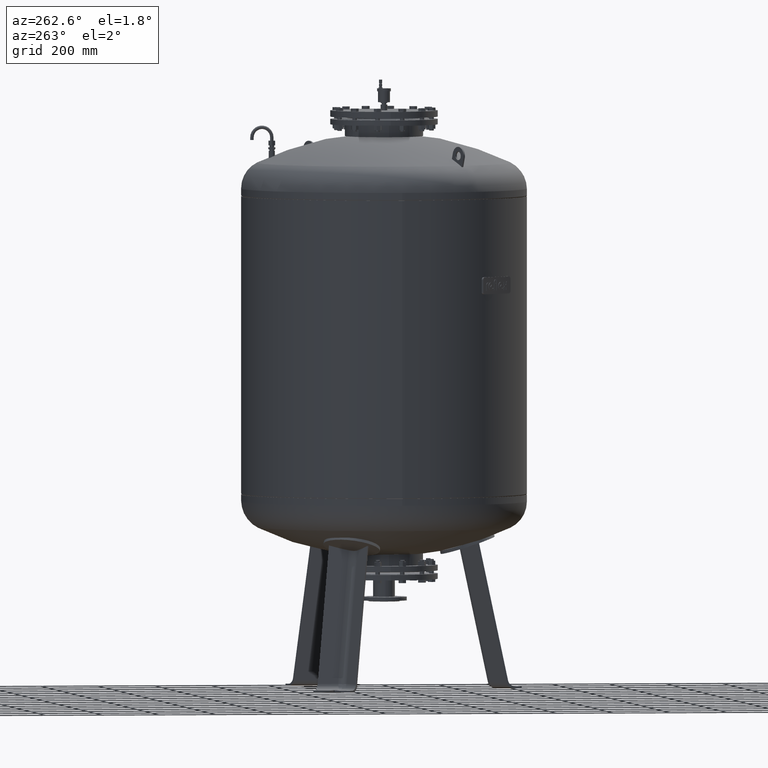
[diagram: clean part render]
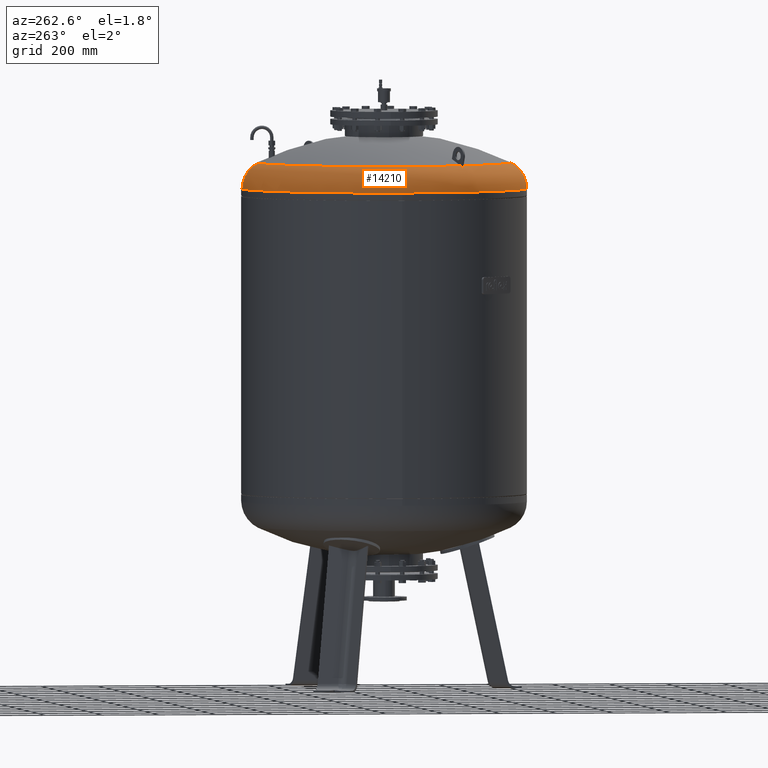
[diagram: same view with one face highlighted and labeled with its STEP entity id]
A machine part, auxiliary view. The second image highlights one B-rep face of the part: STEP entity #14210.
In plain terms, the highlighted toroidal blend (fillet) surface has major radius 399.4 mm and minor (blend) radius 100.6 mm.
Its self-contained STEP definition (entity closure, byte-faithful):
#13615=CARTESIAN_POINT('',(-500.0,2.569315E-014,1746.544644927280400));
#13616=VERTEX_POINT('',#13615);
#13623=CARTESIAN_POINT('',(3.753887E-014,499.999999999999940,1746.544644927280400));
#13624=VERTEX_POINT('',#13623);
#13625=CARTESIAN_POINT('',(2.260647E-015,-3.553717E-014,1746.544644927280400));
#13626=DIRECTION('',(0.0,0.0,-1.0));
#13627=DIRECTION('',(1.0,0.0,0.0));
#13628=AXIS2_PLACEMENT_3D('',#13625,#13626,#13627);
#13629=CIRCLE('',#13628,500.0);
#13630=EDGE_CURVE('',#13616,#13624,#13629,.T.);
#13710=CARTESIAN_POINT('',(-2.369145E-014,-500.000000000000060,1746.544644927280400));
#13711=VERTEX_POINT('',#13710);
#13712=CARTESIAN_POINT('',(-2.474646E-014,-443.777777777777600,1836.827383252533800));
#13713=VERTEX_POINT('',#13712);
#13714=CARTESIAN_POINT('',(-2.369145E-014,-399.399999999999980,1746.544644927280400));
#13715=DIRECTION('',(-1.0,0.0,0.0));
#13716=DIRECTION('',(0.0,-1.0,0.0));
#13717=AXIS2_PLACEMENT_3D('',#13714,#13715,#13716);
#13718=CIRCLE('',#13717,100.600000000000010);
#13719=EDGE_CURVE('',#13711,#13713,#13718,.T.);
#13729=CARTESIAN_POINT('',(2.959885E-014,443.777777777777600,1836.827383252533800));
#13730=VERTEX_POINT('',#13729);
#13731=CARTESIAN_POINT('',(2.521933E-014,399.399999999999860,1746.544644927280400));
#13732=DIRECTION('',(1.0,0.0,0.0));
#13733=DIRECTION('',(0.0,1.0,0.0));
#13734=AXIS2_PLACEMENT_3D('',#13731,#13732,#13733);
#13735=CIRCLE('',#13734,100.600000000000010);
#13736=EDGE_CURVE('',#13624,#13730,#13735,.T.);
#13978=CARTESIAN_POINT('',(-382.814047410493060,-224.481894937162560,1836.827383252533800));
#13979=VERTEX_POINT('',#13978);
#13980=CARTESIAN_POINT('',(-389.830975236114630,-228.533120106169180,1832.371241859355700));
#13981=VERTEX_POINT('',#13980);
#13982=CARTESIAN_POINT('',(-382.814047410493060,-224.481894937162560,1836.827383252533800));
#13983=CARTESIAN_POINT('',(-383.639352309694170,-224.958384942879830,1836.358964044102800));
#13984=CARTESIAN_POINT('',(-384.465875380145410,-225.435578260096290,1835.871089830497800));
#13985=CARTESIAN_POINT('',(-386.558700313612230,-226.643871298800120,1834.585884909508400));
#13986=CARTESIAN_POINT('',(-387.823023543382530,-227.373828655850640,1833.762865036489300));
#13987=CARTESIAN_POINT('',(-389.327412684914410,-228.242388131680000,1832.724754307438600));
#13988=CARTESIAN_POINT('',(-389.579482540164630,-228.387920730463240,1832.548806910300500));
#13989=CARTESIAN_POINT('',(-389.830975236114630,-228.533120106169180,1832.371241859355700));
#13990=B_SPLINE_CURVE_WITH_KNOTS('',3,(#13982,#13983,#13984,#13985,#13986,#13987,#13988,#13989),.UNSPECIFIED.,.F.,.U.,(4,2,2,4),(490.490460209288130,493.520523970825020,498.176350640228350,499.115750118992540),.UNSPECIFIED.);
#13991=EDGE_CURVE('',#13979,#13981,#13990,.T.);
#14093=CARTESIAN_POINT('',(-392.830975236114630,-223.336967683462570,1832.371241859355700));
#14094=VERTEX_POINT('',#14093);
#14095=CARTESIAN_POINT('',(-389.830975236114630,-228.533120106169180,1832.371241859355700));
#14096=CARTESIAN_POINT('',(-390.333307968772260,-227.664983484217170,1832.374723691362500));
#14097=CARTESIAN_POINT('',(-390.833741791658670,-226.799162381117950,1832.376448557724200));
#14098=CARTESIAN_POINT('',(-391.332224433285660,-225.935765119128830,1832.376448557724200));
#14099=CARTESIAN_POINT('',(-391.830707074909750,-225.072367857144680,1832.376448557724200));
#14100=CARTESIAN_POINT('',(-392.330313233880300,-224.206068902067500,1832.374723691362300));
#14101=CARTESIAN_POINT('',(-392.830975236114630,-223.336967683462570,1832.371241859355700));
#14102=B_SPLINE_CURVE_WITH_KNOTS('',3,(#14095,#14096,#14097,#14098,#14099,#14100,#14101),.UNSPECIFIED.,.F.,.U.,(4,3,4),(-2.990895849762056,0.0,2.990895849744776),.UNSPECIFIED.);
#14103=EDGE_CURVE('',#13981,#14094,#14102,.T.);
#14128=CARTESIAN_POINT('',(-385.814047410493120,-219.285742514455960,1836.827383252533800));
#14129=VERTEX_POINT('',#14128);
#14130=CARTESIAN_POINT('',(-392.830975236114630,-223.336967683462570,1832.371241859355700));
#14131=CARTESIAN_POINT('',(-392.579482540164690,-223.191768307756660,1832.548806910300300));
#14132=CARTESIAN_POINT('',(-392.327412684914520,-223.046235708973430,1832.724754307438600));
#14133=CARTESIAN_POINT('',(-390.823023543382700,-222.177676233144100,1833.762865036489300));
#14134=CARTESIAN_POINT('',(-389.558700313612460,-221.447718876093570,1834.585884909508400));
#14135=CARTESIAN_POINT('',(-387.465875380145580,-220.239425837389750,1835.871089830497800));
#14136=CARTESIAN_POINT('',(-386.639352309694290,-219.762232520173260,1836.358964044102800));
#14137=CARTESIAN_POINT('',(-385.814047410493120,-219.285742514455960,1836.827383252533800));
#14138=B_SPLINE_CURVE_WITH_KNOTS('',3,(#14130,#14131,#14132,#14133,#14134,#14135,#14136,#14137),.UNSPECIFIED.,.F.,.U.,(4,2,2,4),(96.832424772951825,97.771824251715969,102.427650921119290,105.457714682656370),.UNSPECIFIED.);
#14139=EDGE_CURVE('',#14094,#14129,#14138,.T.);
#14176=CARTESIAN_POINT('',(-2.369145E-014,-3.553717E-014,1746.544644927280400));
#14177=DIRECTION('',(1.168563E-017,-1.836970E-016,-1.0));
#14178=DIRECTION('',(0.0,-1.0,0.0));
#14179=AXIS2_PLACEMENT_3D('',#14176,#14177,#14178);
#14180=TOROIDAL_SURFACE('',#14179,399.399999999999920,100.600000000000010);
#14181=ORIENTED_EDGE('',*,*,#13719,.T.);
#14182=CARTESIAN_POINT('',(1.205637E-015,-1.895250E-014,1836.827383252533800));
#14183=DIRECTION('',(0.0,0.0,-1.0));
#14184=DIRECTION('',(1.0,0.0,0.0));
#14185=AXIS2_PLACEMENT_3D('',#14182,#14183,#14184);
#14186=CIRCLE('',#14185,443.777777777777600);
#14187=EDGE_CURVE('',#13713,#13979,#14186,.T.);
#14188=ORIENTED_EDGE('',*,*,#14187,.T.);
#14189=ORIENTED_EDGE('',*,*,#13991,.T.);
#14190=ORIENTED_EDGE('',*,*,#14103,.T.);
#14191=ORIENTED_EDGE('',*,*,#14139,.T.);
#14192=CARTESIAN_POINT('',(1.205637E-015,-1.895250E-014,1836.827383252533800));
#14193=DIRECTION('',(0.0,0.0,-1.0));
#14194=DIRECTION('',(1.0,0.0,0.0));
#14195=AXIS2_PLACEMENT_3D('',#14192,#14193,#14194);
#14196=CIRCLE('',#14195,443.777777777777600);
#14197=EDGE_CURVE('',#14129,#13730,#14196,.T.);
#14198=ORIENTED_EDGE('',*,*,#14197,.T.);
#14199=ORIENTED_EDGE('',*,*,#13736,.F.);
#14200=ORIENTED_EDGE('',*,*,#13630,.F.);
#14201=CARTESIAN_POINT('',(2.260647E-015,-3.553717E-014,1746.544644927280400));
#14202=DIRECTION('',(0.0,0.0,-1.0));
#14203=DIRECTION('',(1.0,0.0,0.0));
#14204=AXIS2_PLACEMENT_3D('',#14201,#14202,#14203);
#14205=CIRCLE('',#14204,500.0);
#14206=EDGE_CURVE('',#13711,#13616,#14205,.T.);
#14207=ORIENTED_EDGE('',*,*,#14206,.F.);
#14208=EDGE_LOOP('',(#14181,#14188,#14189,#14190,#14191,#14198,#14199,#14200,#14207));
#14209=FACE_OUTER_BOUND('',#14208,.T.);
#14210=ADVANCED_FACE('',(#14209),#14180,.T.);